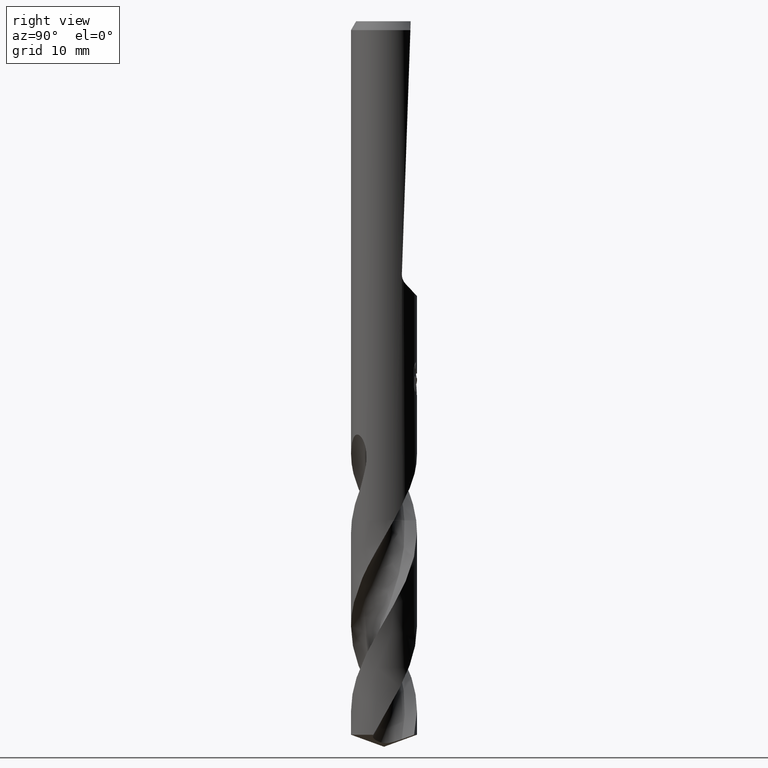
[diagram: clean part render]
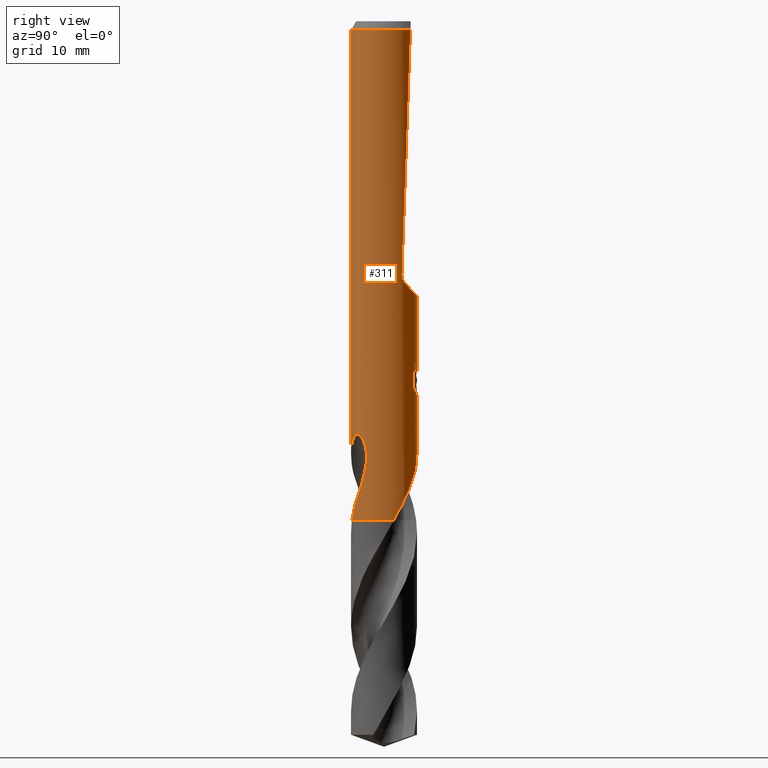
[diagram: same view with one face highlighted and labeled with its STEP entity id]
A machine part, right view. The second image highlights one B-rep face of the part: STEP entity #311.
In plain terms, the highlighted cylindrical surface (edge-blend (fillet) strip) has radius 3 mm, axis along (-0, -0, 1).
Its self-contained STEP definition (entity closure, byte-faithful):
#289=VERTEX_POINT('',#820);
#311=ADVANCED_FACE('',(#846),#847,.T.);
#317=EDGE_CURVE('',#721,#733,#853,.T.);
#337=VERTEX_POINT('',#876);
#347=EDGE_CURVE('',#337,#581,#888,.T.);
#379=VERTEX_POINT('',#927);
#393=VERTEX_POINT('',#943);
#403=VERTEX_POINT('',#954);
#405=EDGE_CURVE('',#455,#379,#956,.T.);
#433=EDGE_CURVE('',#645,#739,#986,.T.);
#455=VERTEX_POINT('',#1011);
#459=EDGE_CURVE('',#495,#589,#1016,.T.);
#475=EDGE_CURVE('',#337,#403,#1032,.T.);
#495=VERTEX_POINT('',#1053);
#511=VERTEX_POINT('',#1071);
#515=VERTEX_POINT('',#1075);
#557=EDGE_CURVE('',#759,#739,#1119,.T.);
#581=VERTEX_POINT('',#1144);
#583=EDGE_CURVE('',#733,#793,#1146,.T.);
#585=EDGE_CURVE('',#403,#645,#1148,.T.);
#589=VERTEX_POINT('',#1152);
#605=EDGE_CURVE('',#379,#393,#1169,.T.);
#633=EDGE_CURVE('',#759,#289,#1200,.T.);
#639=EDGE_CURVE('',#707,#753,#1206,.T.);
#645=VERTEX_POINT('',#1212);
#653=EDGE_CURVE('',#515,#495,#1220,.T.);
#655=VERTEX_POINT('',#1222);
#659=EDGE_CURVE('',#455,#511,#1226,.T.);
#661=EDGE_CURVE('',#393,#721,#1228,.T.);
#679=EDGE_CURVE('',#655,#515,#1247,.T.);
#701=EDGE_CURVE('',#289,#511,#1270,.T.);
#705=EDGE_CURVE('',#793,#707,#1274,.T.);
#707=VERTEX_POINT('',#1276);
#721=VERTEX_POINT('',#1290);
#729=EDGE_CURVE('',#589,#581,#1298,.T.);
#733=VERTEX_POINT('',#1303);
#739=VERTEX_POINT('',#1310);
#753=VERTEX_POINT('',#1327);
#759=VERTEX_POINT('',#1333);
#793=VERTEX_POINT('',#1371);
#799=EDGE_CURVE('',#655,#753,#1377,.T.);
#820=CARTESIAN_POINT('',(1.91164679377282,2.31205677608879,-42.541));
#846=FACE_OUTER_BOUND('',#1592,.T.);
#847=CYLINDRICAL_SURFACE('',#1593,3.0);
#853=B_SPLINE_CURVE_WITH_KNOTS('',3,(#1604,#1605,#1606,#1607,#1608,#1609,#1610,#1611),.UNSPECIFIED.,.F.,.F.,(4,2,2,4),(8.17446522132897,8.48751487521068,8.80056452909238,9.43014514523744),.UNSPECIFIED.);
#876=CARTESIAN_POINT('',(8.89361311375361E-013,-3.0,-39.3520632578571));
#888=LINE('',#1743,#1744);
#927=CARTESIAN_POINT('',(0.29010312703583,2.98594041730307,-33.9998328990228));
#943=CARTESIAN_POINT('',(0.873560781758957,2.86999852971612,-32.3198931596091));
#954=CARTESIAN_POINT('',(2.44092648989433,-1.74409801070127,-40.8982593158529));
#956=B_SPLINE_CURVE_WITH_KNOTS('',3,(#2479,#2480,#2481,#2482,#2483,#2484,#2485,#2486,#2487,#2488,#2489,#2490,#2491,#2492,#2493,#2494),.UNSPECIFIED.,.F.,.F.,(4,2,2,2,2,2,2,4),(5.66023402257373,6.29060333517104,6.60504483258975,6.91948633000846,7.23392782742717,7.54836932484587,7.86141901111221,8.17446869737855),.UNSPECIFIED.);
#986=B_SPLINE_CURVE_WITH_KNOTS('',3,(#3053,#3054,#3055,#3056,#3057,#3058,#3059,#3060,#3061,#3062),.UNSPECIFIED.,.F.,.F.,(4,2,2,2,4),(0.0,0.736394107191226,1.4028382774084,1.80419873517929,2.99560717440711),.UNSPECIFIED.);
#1011=CARTESIAN_POINT('',(-2.46407913303377E-016,3.0,-34.0310253601033));
#1016=ELLIPSE('',#3306,85.9611250435315,3.0);
#1032=B_SPLINE_CURVE_WITH_KNOTS('',3,(#3360,#3361,#3362,#3363,#3364,#3365,#3366,#3367,#3368,#3369,#3370,#3371,#3372,#3373,#3374,#3375,#3376,#3377,#3378,#3379,#3380,#3381,#3382,#3383,#3384,#3385,#3386,#3387,#3388,#3389),.UNSPECIFIED.,.F.,.F.,(4,2,2,2,2,2,2,2,2,2,2,2,2,2,4),(0.0,1.46983380852508,2.27239678300735,2.99931696905311,3.84382348162485,4.858268817967,5.73750597834077,6.13594597323101,6.42715702904358,6.70272785476238,7.0523058754645,7.56375269949944,8.29083449399954,8.76663287136837,9.26666465794678),.UNSPECIFIED.);
#1053=CARTESIAN_POINT('',(2.52177371746177,1.62500994394466,-23.0110595671924));
#1071=CARTESIAN_POINT('',(-8.87140865326111E-013,3.0,-39.3520632578571));
#1075=CARTESIAN_POINT('',(2.2826599132014,1.94665449442457,-23.8713369953104));
#1119=CIRCLE('',#4142,3.0);
#1144=CARTESIAN_POINT('',(3.67381906146713E-016,-3.0,-0.799999999999997));
#1146=LINE('',#4220,#4221);
#1148=B_SPLINE_CURVE_WITH_KNOTS('',3,(#4224,#4225,#4226,#4227),.UNSPECIFIED.,.F.,.F.,(4,4),(0.0,1.72415970165409),.UNSPECIFIED.);
#1152=CARTESIAN_POINT('',(1.79915003951659,2.40063723525806,-0.799999999999997));
#1169=ELLIPSE('',#4259,9.14398372010932,3.0);
#1200=B_SPLINE_CURVE_WITH_KNOTS('',3,(#4990,#4991,#4992,#4993,#4994,#4995,#4996,#4997,#4998,#4999,#5000,#5001),.UNSPECIFIED.,.F.,.F.,(4,2,2,2,2,4),(0.0,0.415306027616153,1.16752740280442,2.2814336372594,2.73150142087631,3.42846223378815),.UNSPECIFIED.);
#1206=B_SPLINE_CURVE_WITH_KNOTS('',3,(#5008,#5009,#5010,#5011,#5012,#5013,#5014,#5015,#5016,#5017,#5018,#5019,#5020,#5021,#5022,#5023,#5024,#5025,#5026,#5027,#5028,#5029,#5030,#5031,#5032,#5033,#5034),.UNSPECIFIED.,.F.,.F.,(4,2,3,2,2,2,2,2,2,2,2,2,4),(-0.54422824842136,-0.27211412421068,0.0,0.272114124210678,0.544228248421357,0.817906359646673,1.09158447087199,1.36255924571499,1.63353402055798,1.90530456554772,2.17707511053746,2.4488456555272,2.72061620051693),.UNSPECIFIED.);
#1212=CARTESIAN_POINT('',(2.08523202784716,-2.15680490310098,-42.541));
#1220=B_SPLINE_CURVE_WITH_KNOTS('',3,(#5179,#5180,#5181,#5182,#5183,#5184,#5185,#5186,#5187,#5188,#5189,#5190),.UNSPECIFIED.,.F.,.F.,(4,2,2,2,2,4),(9.65639576015631,9.92366870863066,10.190941657105,10.4582146055794,10.7254875540537,10.9927605025281),.UNSPECIFIED.);
#1222=CARTESIAN_POINT('',(-3.67381906146713E-016,3.0,-25.0009117563346));
#1226=LINE('',#5197,#5198);
#1228=LINE('',#5201,#5202);
#1247=ELLIPSE('',#5412,4.39883755691887,3.0);
#1270=B_SPLINE_CURVE_WITH_KNOTS('',3,(#5631,#5632,#5633,#5634,#5635,#5636,#5637,#5638,#5639,#5640,#5641,#5642,#5643,#5644,#5645,#5646,#5647,#5648,#5649,#5650,#5651,#5652,#5653,#5654,#5655,#5656,#5657,#5658,#5659,#5660),.UNSPECIFIED.,.F.,.F.,(4,2,2,2,2,2,2,2,2,2,2,2,2,2,4),(0.0,1.46983380852506,2.27239678300714,2.99931696905269,3.8438234816245,4.85826881796674,5.73750597834062,6.13594597323091,6.4271570290435,6.70272785476234,7.05230587546451,7.56375269949955,8.29083449399991,8.76663287136895,9.26666465794757),.UNSPECIFIED.);
#1274=B_SPLINE_CURVE_WITH_KNOTS('',3,(#5723,#5724,#5725,#5726,#5727,#5728,#5729,#5730),.UNSPECIFIED.,.F.,.F.,(4,2,2,4),(0.629580638580865,1.25916127716173,1.57221094126725,1.88526060537277),.UNSPECIFIED.);
#1276=CARTESIAN_POINT('',(0.799431726384364,2.89152363207533,-31.000000276873));
#1290=CARTESIAN_POINT('',(0.873560781758956,2.86999852971612,-33.7587351791531));
#1298=CIRCLE('',#5801,3.0);
#1303=CARTESIAN_POINT('',(1.33721006514658,2.68549236485056,-33.2901657003257));
#1310=CARTESIAN_POINT('',(0.645483483322582,-2.92973566602138,-45.4));
#1327=CARTESIAN_POINT('',(-1.20768269592175E-015,3.0,-32.0232688117743));
#1333=CARTESIAN_POINT('',(2.86501733623269,0.889761576539563,-45.4));
#1371=CARTESIAN_POINT('',(1.33721006514658,2.68549236485057,-31.5150484364821));
#1377=LINE('',#6992,#6993);
#1592=EDGE_LOOP('',(#7032,#7033,#7034,#7035,#7036,#7037,#7038,#7039,#7040,#7041,#7042,#7043,#7044,#7045,#7046,#7047,#7048,#7049,#7050,#7051));
#1593=AXIS2_PLACEMENT_3D('',#7052,#7053,#7054);
#1604=CARTESIAN_POINT('',(0.600330703923335,2.93932016730517,-33.9050364278969));
#1605=CARTESIAN_POINT('',(0.700343038443484,2.91889351228921,-33.8631861412044));
#1606=CARTESIAN_POINT('',(0.795685584213131,2.8940165604303,-33.8114119954011));
#1607=CARTESIAN_POINT('',(0.971352589628262,2.83988055167306,-33.692706383359));
#1608=CARTESIAN_POINT('',(1.0516835476539,2.81066216129401,-33.6257659914415));
#1609=CARTESIAN_POINT('',(1.26543925920527,2.72440179743877,-33.4122346680481));
#1610=CARTESIAN_POINT('',(1.3899740959159,2.66030349847411,-33.2319488826214));
#1611=CARTESIAN_POINT('',(1.47371594109741,2.61307507066968,-33.0321377817991));
#1743=CARTESIAN_POINT('',(3.67381906146713E-016,-3.0,-40.7));
#1744=VECTOR('',#7113,1.0);
#2479=CARTESIAN_POINT('',(-1.53050642192579,2.58022287650581,-33.0319811255889));
#2480=CARTESIAN_POINT('',(-1.44691631248335,2.62980577312329,-33.2314887010961));
#2481=CARTESIAN_POINT('',(-1.32276760444366,2.69707077181617,-33.4113258593841));
#2482=CARTESIAN_POINT('',(-1.10973155101076,2.78826898930335,-33.6245951706909));
#2483=CARTESIAN_POINT('',(-1.02948996220254,2.81934349084513,-33.6916117853674));
#2484=CARTESIAN_POINT('',(-0.853932698223484,2.87738531454781,-33.8105216600777));
#2485=CARTESIAN_POINT('',(-0.758609991487907,2.90431263574779,-33.8624240602539));
#2486=CARTESIAN_POINT('',(-0.558469552260235,2.94934446690523,-33.9464055954533));
#2487=CARTESIAN_POINT('',(-0.453457041446381,2.96746268462387,-33.9785511641911));
#2488=CARTESIAN_POINT('',(-0.240810292537893,2.99223469602914,-34.0209924679526));
#2489=CARTESIAN_POINT('',(-0.133171317626829,2.99887501234033,-34.0312723335086));
#2490=CARTESIAN_POINT('',(0.0759830626177195,3.00085245803086,-34.0312723335086));
#2491=CARTESIAN_POINT('',(0.183273473896684,2.99629272230549,-34.0210815541729));
#2492=CARTESIAN_POINT('',(0.39543915272815,2.97573303917486,-33.9788816901513));
#2493=CARTESIAN_POINT('',(0.500318639064909,2.95974677710468,-33.9468871509919));
#2494=CARTESIAN_POINT('',(0.600330982089903,2.93932011049205,-33.9050368602192));
#3053=CARTESIAN_POINT('',(2.08523202784716,-2.15680490310097,-42.541));
#3054=CARTESIAN_POINT('',(2.0011136183506,-2.23813187030213,-42.7567844705082));
#3055=CARTESIAN_POINT('',(1.90980089420808,-2.31726616423422,-42.9730832519124));
#3056=CARTESIAN_POINT('',(1.7110748485587,-2.4670219548428,-43.3953910344696));
#3057=CARTESIAN_POINT('',(1.60889271258993,-2.53535889369768,-43.6009787544238));
#3058=CARTESIAN_POINT('',(1.43011382877628,-2.63833055071262,-43.9526714593178));
#3059=CARTESIAN_POINT('',(1.36207017969565,-2.6740650952363,-44.0847678399372));
#3060=CARTESIAN_POINT('',(1.08796489969403,-2.80498876049223,-44.6102580837149));
#3061=CARTESIAN_POINT('',(0.869671709301247,-2.88034220069856,-45.0050947837681));
#3062=CARTESIAN_POINT('',(0.645483483322602,-2.92973566602137,-45.4));
#3306=AXIS2_PLACEMENT_3D('',#7312,#7313,#7314);
#3360=CARTESIAN_POINT('',(-1.91164679377282,-2.3120567760888,-42.541));
#3361=CARTESIAN_POINT('',(-1.71375575951833,-2.47567635717405,-42.1237309200278));
#3362=CARTESIAN_POINT('',(-1.486225837873,-2.62112280809457,-41.7347016240395));
#3363=CARTESIAN_POINT('',(-1.08948145585001,-2.79939790357086,-41.0848014893283));
#3364=CARTESIAN_POINT('',(-0.946714273149319,-2.8506808795086,-40.8561448922827));
#3365=CARTESIAN_POINT('',(-0.670335042945821,-2.92732506647416,-40.4135249483925));
#3366=CARTESIAN_POINT('',(-0.537957031087602,-2.95440327743711,-40.2016247371715));
#3367=CARTESIAN_POINT('',(-0.251414391582686,-2.99348382974489,-39.7449234783705));
#3368=CARTESIAN_POINT('',(-0.0948562800467593,-3.00265887070914,-39.4965476035652));
#3369=CARTESIAN_POINT('',(0.252819179254558,-2.99534565963354,-38.9651896548676));
#3370=CARTESIAN_POINT('',(0.458955583756489,-2.97272600277572,-38.6628411750704));
#3371=CARTESIAN_POINT('',(0.856462988645532,-2.88137700708898,-38.1642893885912));
#3372=CARTESIAN_POINT('',(1.07638794081266,-2.81178060567446,-37.9210156171277));
#3373=CARTESIAN_POINT('',(1.40924217176594,-2.65091070729521,-37.6932142640234));
#3374=CARTESIAN_POINT('',(1.51941910433014,-2.59017863231219,-37.6369154430279));
#3375=CARTESIAN_POINT('',(1.71247442146329,-2.46512979296182,-37.5936678633664));
#3376=CARTESIAN_POINT('',(1.79165724831738,-2.40818161234519,-37.592860332513));
#3377=CARTESIAN_POINT('',(1.93913954004224,-2.29088024762937,-37.6307109988692));
#3378=CARTESIAN_POINT('',(2.00364093548818,-2.2342260299911,-37.6661993543013));
#3379=CARTESIAN_POINT('',(2.1349005591831,-2.11007273708381,-37.7772383317337));
#3380=CARTESIAN_POINT('',(2.19562720141664,-2.04573338410109,-37.8592206391473));
#3381=CARTESIAN_POINT('',(2.32001499988593,-1.90524369772981,-38.0837136544856));
#3382=CARTESIAN_POINT('',(2.37946988853628,-1.82873701452893,-38.2502211307938));
#3383=CARTESIAN_POINT('',(2.49127260630273,-1.6751125614895,-38.7160905297008));
#3384=CARTESIAN_POINT('',(2.53169187388303,-1.6096759357542,-39.0478764713719));
#3385=CARTESIAN_POINT('',(2.55169781586479,-1.57767585152545,-39.6619314380946));
#3386=CARTESIAN_POINT('',(2.54699382472898,-1.58547551567002,-39.9064790286728));
#3387=CARTESIAN_POINT('',(2.51376896782865,-1.63767237368775,-40.4027884481159));
#3388=CARTESIAN_POINT('',(2.48410311457679,-1.6836708063326,-40.6526821951794));
#3389=CARTESIAN_POINT('',(2.44092648989433,-1.74409801070127,-40.8982593158529));
#4142=AXIS2_PLACEMENT_3D('',#7381,#7382,#7383);
#4220=CARTESIAN_POINT('',(1.33721006514658,2.68549236485056,-32.4026070684039));
#4221=VECTOR('',#7400,1.0);
#4224=CARTESIAN_POINT('',(2.44092648994695,-1.74409801062763,-40.8982593158818));
#4225=CARTESIAN_POINT('',(2.34420896265217,-1.87945759075297,-41.4483742748423));
#4226=CARTESIAN_POINT('',(2.22763849090267,-2.01912415260341,-42.0017629451952));
#4227=CARTESIAN_POINT('',(2.08523202784716,-2.15680490310097,-42.541));
#4259=AXIS2_PLACEMENT_3D('',#7410,#7411,#7412);
#4990=CARTESIAN_POINT('',(2.86501733623269,0.889761576539563,-45.3999999999999));
#4991=CARTESIAN_POINT('',(2.84451169077211,0.955789410606828,-45.2800659026946));
#4992=CARTESIAN_POINT('',(2.82157730473531,1.02158557588116,-45.1603589587975));
#4993=CARTESIAN_POINT('',(2.75001209890086,1.20566378565017,-44.8249620406509));
#4994=CARTESIAN_POINT('',(2.69944328157433,1.31475240913093,-44.6291765332596));
#4995=CARTESIAN_POINT('',(2.55245916912291,1.58716416441731,-44.0961978531819));
#4996=CARTESIAN_POINT('',(2.46107786101117,1.72373672179942,-43.7835529142067));
#4997=CARTESIAN_POINT('',(2.31530985737583,1.90891054950524,-43.3604038336336));
#4998=CARTESIAN_POINT('',(2.2691706026334,1.96403057103763,-43.2291034832341));
#4999=CARTESIAN_POINT('',(2.13001448193715,2.11630545189505,-42.9025271482309));
#5000=CARTESIAN_POINT('',(2.03024881677081,2.21399466128959,-42.7179342628459));
#5001=CARTESIAN_POINT('',(1.91164679377282,2.31205677608879,-42.541));
#5008=CARTESIAN_POINT('',(0.665621182276714,2.92522622060321,-30.8140957881762));
#5009=CARTESIAN_POINT('',(0.728850563417096,2.91083867849353,-30.877518087557));
#5010=CARTESIAN_POINT('',(0.783900459387161,2.89602337967411,-30.9578702196133));
#5011=CARTESIAN_POINT('',(0.857188692916628,2.87518328740958,-31.1345580124299));
#5012=CARTESIAN_POINT('',(0.875400981188567,2.86943777108584,-31.2309373045166));
#5013=CARTESIAN_POINT('',(0.875400981188567,2.86943777108584,-31.3216420125868));
#5014=CARTESIAN_POINT('',(0.875400981188567,2.86943777108584,-31.412346720657));
#5015=CARTESIAN_POINT('',(0.857188692916629,2.87518328740958,-31.5087260127437));
#5016=CARTESIAN_POINT('',(0.783900459387161,2.89602337967411,-31.6854138055602));
#5017=CARTESIAN_POINT('',(0.728850563417096,2.91083867849353,-31.7657659376165));
#5018=CARTESIAN_POINT('',(0.60202838769231,2.93969645569731,-31.8929750586276));
#5019=CARTESIAN_POINT('',(0.5214778595293,2.95568533572518,-31.9483797636259));
#5020=CARTESIAN_POINT('',(0.34429909105015,2.98152194310932,-32.0221641076746));
#5021=CARTESIAN_POINT('',(0.247628172090375,2.99115403786358,-32.0405166027747));
#5022=CARTESIAN_POINT('',(0.0663244946631877,3.00062654348629,-32.0405166027747));
#5023=CARTESIAN_POINT('',(-0.0299285908853379,3.00115720326599,-32.0224875186921));
#5024=CARTESIAN_POINT('',(-0.206881310600538,2.99416773126077,-31.949244373347));
#5025=CARTESIAN_POINT('',(-0.287593937381961,2.98687212067831,-31.8940404490632));
#5026=CARTESIAN_POINT('',(-0.415200117492864,2.97182576996222,-31.7666805419979));
#5027=CARTESIAN_POINT('',(-0.470604049431396,2.96309385107775,-31.6859121102136));
#5028=CARTESIAN_POINT('',(-0.544183869965539,2.95046729924835,-31.5086992019516));
#5029=CARTESIAN_POINT('',(-0.562348199187247,2.94682278104247,-31.41223219425));
#5030=CARTESIAN_POINT('',(-0.562348199187247,2.94682278104247,-31.2310518309235));
#5031=CARTESIAN_POINT('',(-0.54418386996554,2.95046729924835,-31.134584823222));
#5032=CARTESIAN_POINT('',(-0.4706040494314,2.96309385107775,-30.95737191496));
#5033=CARTESIAN_POINT('',(-0.415200117492863,2.97182576996222,-30.8766034831756));
#5034=CARTESIAN_POINT('',(-0.351303479704285,2.97935997575782,-30.812830162452));
#5179=CARTESIAN_POINT('',(2.1993251643641,2.0403354678569,-23.961472197729));
#5180=CARTESIAN_POINT('',(2.25053184097059,1.98513859743127,-23.9138446323197));
#5181=CARTESIAN_POINT('',(2.29788287508865,1.92976722949031,-23.8571075060433));
#5182=CARTESIAN_POINT('',(2.37970549766852,1.82791383934016,-23.7268045582116));
#5183=CARTESIAN_POINT('',(2.41423408090567,1.78148417509052,-23.6532336111416));
#5184=CARTESIAN_POINT('',(2.46888600291622,1.7049378084188,-23.4943584779312));
#5185=CARTESIAN_POINT('',(2.48916425834033,1.67470764776135,-23.408819725842));
#5186=CARTESIAN_POINT('',(2.51582947593657,1.63437647323784,-23.2326537242643));
#5187=CARTESIAN_POINT('',(2.52224462272648,1.62427893636757,-23.1420299460602));
#5188=CARTESIAN_POINT('',(2.52224462272648,1.62427893636757,-22.9638479804106));
#5189=CARTESIAN_POINT('',(2.51582947593657,1.63437647323784,-22.8732242022064));
#5190=CARTESIAN_POINT('',(2.50249686713845,1.65454206049959,-22.7851412014176));
#5197=CARTESIAN_POINT('',(-3.67381906146713E-016,3.0,-40.7));
#5198=VECTOR('',#7442,1.0);
#5201=CARTESIAN_POINT('',(0.873560781758957,2.86999852971612,-33.0393141693811));
#5202=VECTOR('',#7443,1.0);
#5412=AXIS2_PLACEMENT_3D('',#7450,#7451,#7452);
#5631=CARTESIAN_POINT('',(1.91164679377282,2.3120567760888,-42.541));
#5632=CARTESIAN_POINT('',(1.71375575951834,2.47567635717405,-42.1237309200278));
#5633=CARTESIAN_POINT('',(1.48622583787301,2.62112280809456,-41.7347016240395));
#5634=CARTESIAN_POINT('',(1.08948145585004,2.79939790357085,-41.0848014893283));
#5635=CARTESIAN_POINT('',(0.946714273149378,2.85068087950859,-40.8561448922827));
#5636=CARTESIAN_POINT('',(0.670335042945774,2.92732506647418,-40.4135249483925));
#5637=CARTESIAN_POINT('',(0.5379570310875,2.95440327743712,-40.2016247371714));
#5638=CARTESIAN_POINT('',(0.25141439158274,2.99348382974488,-39.7449234783706));
#5639=CARTESIAN_POINT('',(0.0948562800467875,3.00265887070915,-39.4965476035652));
#5640=CARTESIAN_POINT('',(-0.252819179254595,2.99534565963354,-38.9651896548675));
#5641=CARTESIAN_POINT('',(-0.458955583756502,2.97272600277571,-38.6628411750703));
#5642=CARTESIAN_POINT('',(-0.856462988645532,2.88137700708898,-38.1642893885912));
#5643=CARTESIAN_POINT('',(-1.07638794081266,2.81178060567446,-37.9210156171277));
#5644=CARTESIAN_POINT('',(-1.40924217176593,2.65091070729521,-37.6932142640234));
#5645=CARTESIAN_POINT('',(-1.51941910433014,2.59017863231219,-37.6369154430279));
#5646=CARTESIAN_POINT('',(-1.71247442146329,2.46512979296182,-37.5936678633664));
#5647=CARTESIAN_POINT('',(-1.79165724831738,2.40818161234519,-37.592860332513));
#5648=CARTESIAN_POINT('',(-1.93913954004224,2.29088024762937,-37.6307109988692));
#5649=CARTESIAN_POINT('',(-2.00364093548818,2.23422602999109,-37.6661993543013));
#5650=CARTESIAN_POINT('',(-2.1349005591831,2.11007273708381,-37.7772383317337));
#5651=CARTESIAN_POINT('',(-2.19562720141664,2.04573338410109,-37.8592206391473));
#5652=CARTESIAN_POINT('',(-2.32001499988593,1.90524369772981,-38.0837136544856));
#5653=CARTESIAN_POINT('',(-2.37946988853628,1.82873701452892,-38.2502211307938));
#5654=CARTESIAN_POINT('',(-2.49127260630273,1.67511256148949,-38.7160905297008));
#5655=CARTESIAN_POINT('',(-2.53169187388303,1.6096759357542,-39.0478764713719));
#5656=CARTESIAN_POINT('',(-2.55169781586479,1.57767585152545,-39.6619314380946));
#5657=CARTESIAN_POINT('',(-2.54699382472898,1.58547551567002,-39.9064790286728));
#5658=CARTESIAN_POINT('',(-2.51376896782865,1.63767237368775,-40.4027884481159));
#5659=CARTESIAN_POINT('',(-2.48410311457679,1.6836708063326,-40.6526821951794));
#5660=CARTESIAN_POINT('',(-2.44092648989433,1.74409801070127,-40.8982593158529));
#5723=CARTESIAN_POINT('',(1.47371594887933,2.61307506628086,-31.7730763684241));
#5724=CARTESIAN_POINT('',(1.38997410067862,2.66030349611674,-31.5732652606136));
#5725=CARTESIAN_POINT('',(1.2654392594963,2.72440179761724,-31.3929794688919));
#5726=CARTESIAN_POINT('',(1.05168354029617,2.81066216411606,-31.1794481382038));
#5727=CARTESIAN_POINT('',(0.971352579549231,2.83988055521709,-31.1125077441098));
#5728=CARTESIAN_POINT('',(0.795685568183073,2.89401656493242,-30.9938021282019));
#5729=CARTESIAN_POINT('',(0.700343019183212,2.91889351702519,-30.9420279807093));
#5730=CARTESIAN_POINT('',(0.600330681290245,2.93932017192779,-30.9001776926585));
#5801=AXIS2_PLACEMENT_3D('',#7467,#7468,#7469);
#6992=CARTESIAN_POINT('',(-3.67381906146713E-016,3.0,-40.7));
#6993=VECTOR('',#7548,1.0);
#7032=ORIENTED_EDGE('',*,*,#799,.F.);
#7033=ORIENTED_EDGE('',*,*,#679,.T.);
#7034=ORIENTED_EDGE('',*,*,#653,.T.);
#7035=ORIENTED_EDGE('',*,*,#459,.T.);
#7036=ORIENTED_EDGE('',*,*,#729,.T.);
#7037=ORIENTED_EDGE('',*,*,#347,.F.);
#7038=ORIENTED_EDGE('',*,*,#475,.T.);
#7039=ORIENTED_EDGE('',*,*,#585,.T.);
#7040=ORIENTED_EDGE('',*,*,#433,.T.);
#7041=ORIENTED_EDGE('',*,*,#557,.F.);
#7042=ORIENTED_EDGE('',*,*,#633,.T.);
#7043=ORIENTED_EDGE('',*,*,#701,.T.);
#7044=ORIENTED_EDGE('',*,*,#659,.F.);
#7045=ORIENTED_EDGE('',*,*,#405,.T.);
#7046=ORIENTED_EDGE('',*,*,#605,.T.);
#7047=ORIENTED_EDGE('',*,*,#661,.T.);
#7048=ORIENTED_EDGE('',*,*,#317,.T.);
#7049=ORIENTED_EDGE('',*,*,#583,.T.);
#7050=ORIENTED_EDGE('',*,*,#705,.T.);
#7051=ORIENTED_EDGE('',*,*,#639,.T.);
#7052=CARTESIAN_POINT('',(0.0,0.0,-40.7));
#7053=DIRECTION('',(-0.0,-0.0,1.0));
#7054=DIRECTION('',(0.0,1.0,0.0));
#7113=DIRECTION('',(-0.0,-0.0,1.0));
#7312=CARTESIAN_POINT('',(0.0,0.0,-69.5452559092481));
#7313=DIRECTION('',(0.0,-0.999390827019096,0.0348994967025009));
#7314=DIRECTION('',(0.0,0.0348994967025009,0.999390827019096));
#7381=CARTESIAN_POINT('',(0.0,0.0,-45.4));
#7382=DIRECTION('',(0.0,0.0,-1.0));
#7383=DIRECTION('',(0.0,1.0,0.0));
#7400=DIRECTION('',(-0.0,-0.0,1.0));
#7410=CARTESIAN_POINT('',(0.0,0.0,-34.8351219173269));
#7411=DIRECTION('',(0.944648353914092,0.0,-0.328084573619969));
#7412=DIRECTION('',(0.328084573619969,-0.0,0.944648353914092));
#7442=DIRECTION('',(0.0,0.0,-1.0));
#7443=DIRECTION('',(0.0,0.0,-1.0));
#7450=CARTESIAN_POINT('',(0.0,0.0,-21.7838056262606));
#7451=DIRECTION('',(0.0,-0.731353701619171,-0.681998360062499));
#7452=DIRECTION('',(0.0,0.681998360062499,-0.731353701619171));
#7467=CARTESIAN_POINT('',(0.0,0.0,-0.799999999999997));
#7468=DIRECTION('',(0.0,0.0,-1.0));
#7469=DIRECTION('',(0.0,1.0,0.0));
#7548=DIRECTION('',(0.0,0.0,-1.0));